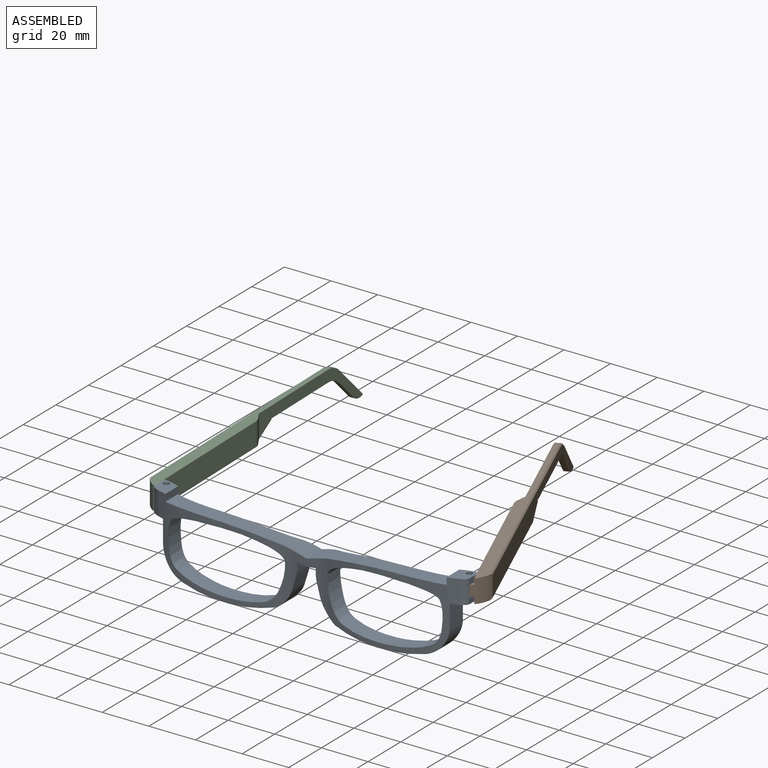
[diagram: assembled view]
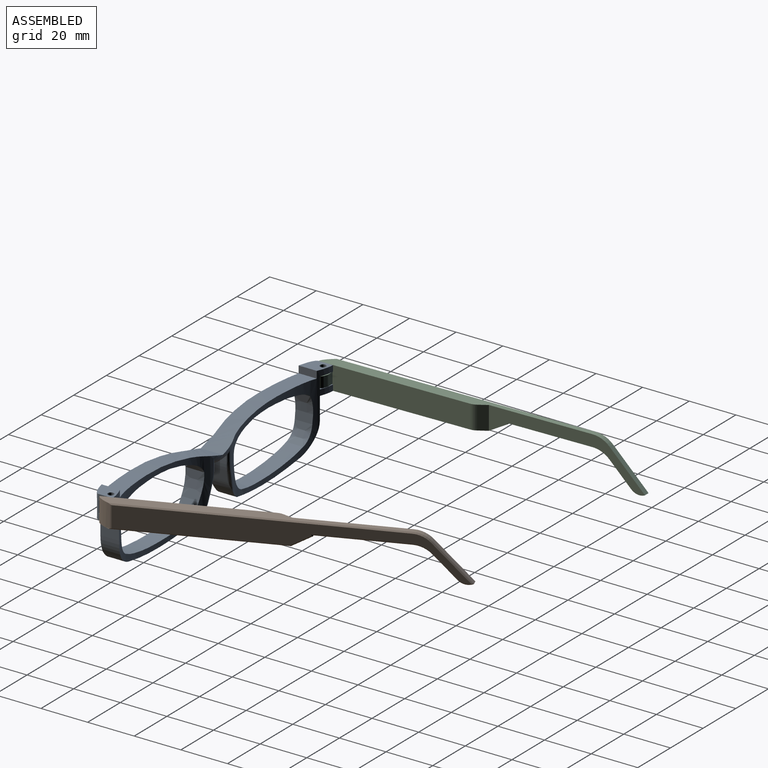
[diagram: assembled view, second angle]
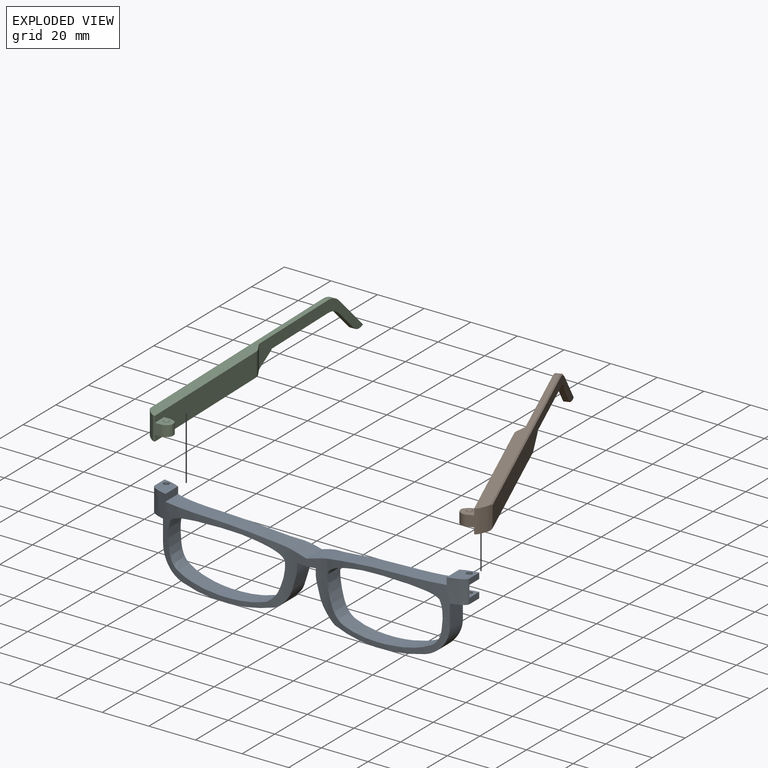
[diagram: exploded view]
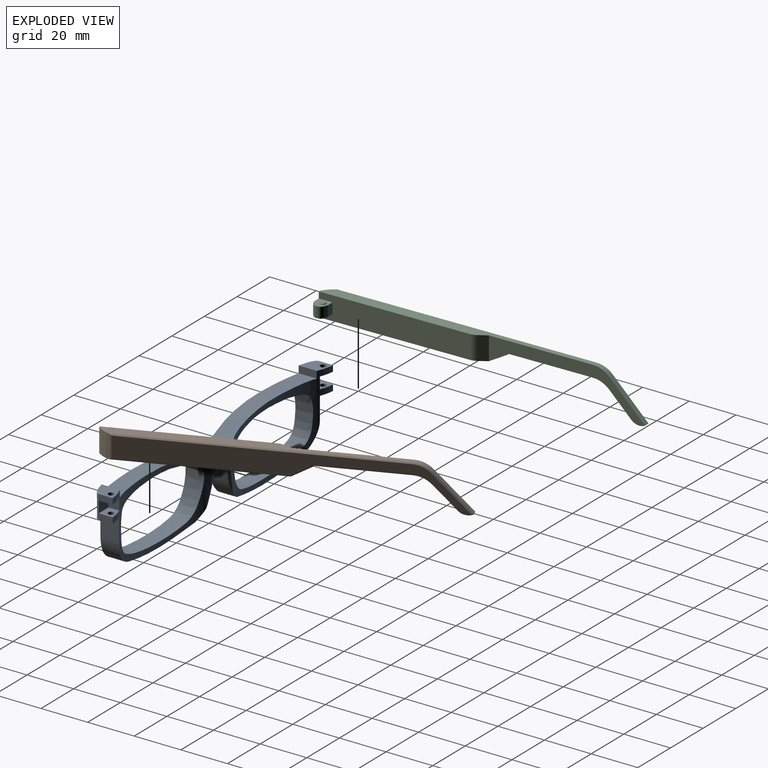
[diagram: exploded view, second angle]
ASSEMBLY  parts=3 mates=4
PART A: 91 faces, bbox 135.1x12.1x34.1 mm
  f0: extruded ~51.21x34.02mm, area 342.6mm2, adj f11,f13,f14,f30,f31,f32,f33,f34
  f1: extruded ~57.03x34.02mm, area 439mm2, adj f8,f13,f14,f15,f19,f20,f30,f31
  f2: extruded ~57.03x34.02mm, area 439mm2, adj f9,f12,f16,f17,f18,f21,f22,f23
  f3: extruded ~51.21x34.02mm, area 342.6mm2, adj f4,f10,f12,f17,f21,f22,f23,f24
  f4: cylinder r=20mm len=23.87mm, axis (0,0,1), area 51.6mm2, adj f3,f16,f17,f18,f42,f73,f74,f75
  f5: plane 1.05x0.32mm, normal (0,1,0), area 0.2mm2, adj f10,f67,f81
  f6: plane 1.05x0.32mm, normal (0,1,0), area 0.2mm2, adj f11,f67,f82
  f7: plane 16.35x12.63mm, normal (0,-1,0), area 83.6mm2, adj f8,f9,f39,f40,f41,f43,f44,f45
  f8: cylinder r=20mm len=23.15mm, axis (0,0,1), area 71.7mm2, adj f1,f7,f46,f56,f57,f82
  f9: cylinder r=20mm len=23.15mm, axis (0,0,1), area 71.7mm2, adj f2,f7,f47,f50,f51,f81
  f10: cylinder r=20mm len=21.92mm, axis (0,0,1), area 69.3mm2, adj f3,f5,f47,f50,f51,f63,f64,f65
  f11: cylinder r=20mm len=21.92mm, axis (0,0,1), area 69.3mm2, adj f0,f6,f46,f56,f57,f60,f61,f62
  f12: plane 20.33x9.98mm, normal (0,0,1), area 146.6mm2, adj f2,f3,f81,f89
  f13: plane 20.33x9.98mm, normal (0,0,1), area 146.6mm2, adj f0,f1,f82,f90
  f14: plane 9.76x7.17mm, normal (0,0,1), area 51.2mm2, adj f0,f1,f15,f59,f78,f90
  f15: plane 6x2.5mm, normal (1,0,0), area 15mm2, adj f1,f14,f59,f69
  f16: plane 6x2.5mm, normal (-1,0,0), area 15mm2, adj f2,f4,f18,f74
  f17: plane 9.76x7.17mm, normal (0,0,1), area 51.2mm2, adj f2,f3,f4,f42,f80,f89
  f18: plane 9.47x6mm, normal (0,0,-1), area 42mm2, adj f2,f4,f16,f79,f85
  f19: plane 9.47x6mm, normal (0,0,-1), area 42mm2, adj f1,f20,f59,f77,f88
  f20: plane 6x2.5mm, normal (1,0,0), area 15mm2, adj f1,f19,f59,f71
  f21: extruded ~11.69x8.27mm, area 87.6mm2, adj f2,f3,f22,f29
  f22: extruded ~7.23x7.2mm, area 51mm2, adj f2,f3,f21,f23
  f23: extruded ~18.57x8.25mm, area 133.5mm2, adj f2,f3,f22,f49
  f24: extruded ~8.61x7.01mm, area 60.4mm2, adj f2,f3,f25,f53
  f25: extruded ~7.19x4.22mm, area 29.6mm2, adj f2,f3,f24,f26
  f26: extruded ~7.56x6.16mm, area 43.9mm2, adj f2,f3,f25,f27
  f27: extruded ~8.5x7.9mm, area 61.7mm2, adj f2,f3,f26,f28
  f28: extruded ~11.18x7.72mm, area 85.4mm2, adj f2,f3,f27,f29
  f29: extruded ~8.24x7.35mm, area 65.6mm2, adj f2,f3,f21,f28
  f30: extruded ~7.23x7.2mm, area 51mm2, adj f0,f1,f31,f38
  f31: extruded ~11.69x8.27mm, area 87.6mm2, adj f0,f1,f30,f32
  f32: extruded ~8.24x7.35mm, area 65.6mm2, adj f0,f1,f31,f33
  f33: extruded ~11.18x7.72mm, area 85.4mm2, adj f0,f1,f32,f34
  f34: extruded ~8.5x7.9mm, area 61.7mm2, adj f0,f1,f33,f35
  f35: extruded ~7.56x6.16mm, area 43.9mm2, adj f0,f1,f34,f36
  f36: extruded ~7.19x4.22mm, area 29.6mm2, adj f0,f1,f35,f37
  f37: extruded ~8.61x7.01mm, area 60.4mm2, adj f0,f1,f36,f54
  f38: extruded ~18.57x8.25mm, area 133.5mm2, adj f0,f1,f30,f58
  f39: plane 8.18x2.36mm, normal (1,0,0), area 13.9mm2, adj f7,f41,f48,f65,f68
  f40: plane 8.17x2.35mm, normal (-1,0,0), area 13.9mm2, adj f7,f41,f45,f60,f66
  f41: extruded ~8x6.5mm, area 51.7mm2, adj f7,f39,f40,f66,f67,f68
  f42: plane 6x2.5mm, normal (-1,0,0), area 15mm2, adj f2,f4,f17,f73
  f43: plane 7.98x4.64mm, normal (0.97,0,-0.26), area 37.5mm2, adj f7,f47,f48,f63
  f44: plane 7.98x4.64mm, normal (-0.97,0,-0.26), area 37.5mm2, adj f7,f45,f46,f62
  f45: cylinder r=15mm len=8.09mm, axis (0,-1,0), area 31.5mm2, adj f7,f40,f44,f61
  f46: cylinder r=15mm len=9.21mm, axis (0,-1,0), area 93.9mm2, adj f0,f1,f7,f8,f11,f44,f62,f86
  f47: cylinder r=15mm len=9.21mm, axis (0,-1,0), area 93.9mm2, adj f2,f3,f7,f9,f10,f43,f63,f83
  f48: cylinder r=15mm len=8.09mm, axis (0,-1,0), area 31.5mm2, adj f7,f39,f43,f64
  f49: extruded ~8.5x6.37mm, area 65.5mm2, adj f2,f3,f23,f50
  f50: extruded ~10.63x8.39mm, area 86mm2, adj f2,f3,f9,f10,f49,f51
  f51: extruded ~8.93x5.06mm, area 53mm2, adj f2,f3,f9,f10,f50,f52
  f52: extruded ~11.67x8.5mm, area 86.2mm2, adj f2,f3,f51,f53
  f53: extruded ~7.24x4.92mm, area 34.7mm2, adj f2,f3,f24,f52
  f54: extruded ~7.24x4.92mm, area 34.7mm2, adj f0,f1,f37,f55
  f55: extruded ~11.67x8.5mm, area 86.2mm2, adj f0,f1,f54,f56
  f56: extruded ~8.93x5.06mm, area 53mm2, adj f0,f1,f8,f11,f55,f57
  f57: extruded ~10.63x8.39mm, area 86mm2, adj f0,f1,f8,f11,f56,f58
  f58: extruded ~8.5x6.37mm, area 65.5mm2, adj f0,f1,f38,f57
  f59: cylinder r=20mm len=23.87mm, axis (0,0,1), area 51.6mm2, adj f0,f14,f15,f19,f20,f69,f70,f71
  f60: cylinder r=1mm len=4.85mm, axis (0,0,1), area 6.3mm2, adj f11,f40,f61,f66
  f61: bspline ~7.14x2.18mm, area 6.9mm2, adj f11,f45,f60,f62
  f62: bspline ~24.24x7.77mm, area 14.7mm2, adj f11,f44,f46,f61
  f63: bspline ~24.24x7.77mm, area 14.7mm2, adj f10,f43,f47,f64
  f64: bspline ~7.14x2.18mm, area 6.9mm2, adj f10,f48,f63,f65
  f65: cylinder r=1mm len=4.85mm, axis (0,0,1), area 6.3mm2, adj f10,f39,f64,f68
  f66: bspline ~7.97x3.75mm, area 15.4mm2, adj f11,f40,f41,f60,f67
  f67: bspline ~7.26x3.22mm, area 10.7mm2, adj f5,f6,f41,f66,f68
  f68: bspline ~7.97x3.75mm, area 15.4mm2, adj f10,f39,f41,f65,f67
  f69: plane 6x6mm, normal (0,0,-1), area 27.8mm2, adj f15,f59,f70,f72,f78
  f70: plane 5x4.57mm, normal (1,0,0), area 22.8mm2, adj f59,f69,f71,f72
  f71: plane 6x6mm, normal (0,0,1), area 27.8mm2, adj f20,f59,f70,f72,f77
  f72: plane 6x5mm, normal (0,1,0), area 30mm2, adj f1,f69,f70,f71
  f73: plane 6x6mm, normal (0,0,-1), area 27.8mm2, adj f4,f42,f75,f76,f80
  f74: plane 6x6mm, normal (0,0,1), area 27.8mm2, adj f4,f16,f75,f76,f79
  f75: plane 5x4.57mm, normal (-1,0,0), area 22.8mm2, adj f4,f73,f74,f76
  f76: plane 6x5mm, normal (0,1,0), area 30mm2, adj f2,f73,f74,f75
  f77: cylinder r=1.25mm len=2.5mm, axis (0,0,1), area 19.6mm2, adj f19,f71
  f78: cylinder r=1.25mm len=2.5mm, axis (0,0,1), area 19.6mm2, adj f14,f69
  f79: cylinder r=1.25mm len=2.5mm, axis (0,0,1), area 19.6mm2, adj f18,f74
  f80: cylinder r=1.25mm len=2.5mm, axis (0,0,1), area 19.6mm2, adj f17,f73
  f81: cylinder r=136.33mm len=40mm, axis (0,-1,0), area 305.8mm2, adj f2,f3,f5,f7,f9,f10,f12,f82
  f82: cylinder r=136.33mm len=40mm, axis (0,-1,0), area 305.8mm2, adj f0,f1,f6,f7,f8,f11,f13,f81
  f83: cylinder r=72mm len=39.22mm, axis (0,-1,0), area 290.2mm2, adj f2,f3,f47,f84
  f84: cylinder r=12.7mm len=12.25mm, axis (0,-1,0), area 128.9mm2, adj f2,f3,f4,f83,f85
  f85: plane 9.24x8.04mm, normal (-1,0,0), area 74.3mm2, adj f2,f4,f18,f84
  f86: cylinder r=72mm len=39.22mm, axis (0,-1,0), area 290.2mm2, adj f0,f1,f46,f87
  f87: cylinder r=12.7mm len=12.25mm, axis (0,-1,0), area 128.9mm2, adj f0,f1,f59,f86,f88
  f88: plane 9.24x8.04mm, normal (1,0,0), area 74.3mm2, adj f1,f19,f59,f87
  f89: plane 7.81x3mm, normal (1,0,0), area 23.4mm2, adj f2,f3,f12,f17
  f90: plane 7.81x3mm, normal (-1,0,0), area 23.4mm2, adj f0,f1,f13,f14
PART B: 40 faces, bbox 11.3x136x18.6 mm
  f0: plane 113.86x5mm, normal (0,0,1), area 434.2mm2, adj f1,f6,f14,f16,f26,f27,f28,f29
  f1: plane 63.91x10mm, normal (-1,0,0), area 612.4mm2, adj f0,f3,f4,f5,f6,f17,f29
  f2: plane 4.6x0.97mm, normal (-1,0,0), area 4.5mm2, adj f3,f4,f23,f25
  f3: plane 5.8x5.8mm, normal (0,0,1), area 24.6mm2, adj f1,f2,f6,f17,f21,f22,f23,f24
  f4: plane 5.8x5.8mm, normal (0,0,-1), area 24.6mm2, adj f1,f2,f6,f17,f20,f22,f23,f24
  f5: plane 70x5mm, normal (0,0,-1), area 335.5mm2, adj f1,f6,f10,f16,f26,f28,f29,f30
  f6: plane 10x3.09mm, normal (0,-1,0), area 17.4mm2, adj f0,f1,f3,f4,f5,f16,f23
  f7: plane 129.47x17.54mm, normal (1,0,0), area 847.7mm2, adj f16,f30,f31,f32,f33,f34,f35,f36
  f8: plane 35.86x2.25mm, normal (0,0,-1), area 80.7mm2, adj f9,f13,f27,f33
  f9: plane 2.25x0.38mm, normal (0,1,0), area 0.9mm2, adj f8,f10,f27,f32
  f10: plane 8x4.62mm, normal (0,0.5,-0.87), area 20.8mm2, adj f5,f9,f27,f31
  f11: plane 15.03x15.03mm, normal (0,0.71,0.71), area 47.8mm2, adj f14,f15,f27,f39
  f12: plane 9.15x9.15mm, normal (0,-0.71,-0.71), area 29.1mm2, adj f13,f15,f27,f35
  f13: cylinder r=10mm len=7.07mm, axis (-1,0,0), area 17.7mm2, adj f8,f12,f27,f34
  f14: cylinder r=10mm len=7.07mm, axis (1,0,0), area 17.7mm2, adj f0,f11,f27,f38
  f15: cylinder r=5mm len=5.88mm, axis (1,0,0), area 14.3mm2, adj f11,f12,f27,f37
  f16: extruded ~10x5.62mm, area 75.7mm2, adj f0,f5,f6,f7,f30,f36
  f17: plane 4.6x2.45mm, normal (0,1,0), area 11.3mm2, adj f1,f3,f4,f24
  f18: plane 1.5x1.5mm, normal (0,0,-1), area 1.8mm2, adj f20
  f19: plane 1.5x1.5mm, normal (0,0,1), area 1.8mm2, adj f21
  f20: torus R=0.75mm, axis (0,0,1), area 5.3mm2, adj f4,f18
  f21: torus R=0.75mm, axis (0,0,1), area 5.3mm2, adj f3,f19
  f22: plane 4.6x1.35mm, normal (-0.34,0.94,0), area 6.6mm2, adj f3,f4,f24,f25
  f23: cylinder r=3.5mm len=4.6mm, axis (0,0,1), area 19.8mm2, adj f2,f3,f4,f6
  f24: cylinder r=2mm len=4.6mm, axis (0,0,-1), area 3.2mm2, adj f3,f4,f17,f22
  f25: cylinder r=2mm len=4.6mm, axis (0,0,-1), area 11.2mm2, adj f2,f3,f4,f22
  f26: plane 10x0.01mm, normal (0,1,0), area 0.1mm2, adj f0,f5,f27,f28
  f27: plane 65.96x18.54mm, normal (-1,0,0), area 340.6mm2, adj f0,f8,f9,f10,f11,f12,f13,f14
  f28: plane 10x3.59mm, normal (-0.87,0.5,0), area 41.5mm2, adj f0,f5,f26,f29
  f29: cylinder r=5mm len=10mm, axis (0,0,-1), area 26.2mm2, adj f0,f1,f5,f28
  f30: plane 65.67x0.5mm, normal (0.71,0,-0.71), area 46mm2, adj f5,f7,f16,f31
  f31: plane 8.13x4.91mm, normal (0.71,0.35,-0.61), area 6.4mm2, adj f7,f10,f30,f32
  f32: plane 0.88x0.5mm, normal (0.71,0.71,0), area 0.3mm2, adj f7,f9,f31,f33
  f33: plane 36.36x0.5mm, normal (0.71,0,-0.71), area 25.5mm2, adj f7,f8,f32,f34
  f34: cone r=10mm half-angle=45deg, axis (1,0,0), area 5.7mm2, adj f7,f13,f33,f35
  f35: plane 9.5x9.5mm, normal (0.71,-0.5,-0.5), area 9.2mm2, adj f7,f12,f34,f37
  f36: plane 109.53x0.5mm, normal (0.71,0,0.71), area 77.1mm2, adj f0,f7,f16,f38
  f37: cone r=5mm half-angle=45deg, axis (-1,0,0), area 4mm2, adj f7,f15,f35,f39
  f38: cone r=9.5mm half-angle=45deg, axis (-1,0,0), area 5.4mm2, adj f7,f14,f36,f39
  f39: plane 15.42x15.07mm, normal (0.71,0.5,0.5), area 14.8mm2, adj f7,f11,f37,f38
PART C: 40 faces, bbox 11.3x136x18.6 mm
  f0: plane 35.86x2.25mm, normal (0,0,-1), area 80.7mm2, adj f1,f5,f26,f33
  f1: plane 2.25x0.38mm, normal (0,1,0), area 0.9mm2, adj f0,f2,f26,f32
  f2: plane 8x4.62mm, normal (0,0.5,-0.87), area 20.8mm2, adj f1,f11,f26,f31
  f3: plane 15.03x15.03mm, normal (0,0.71,0.71), area 47.8mm2, adj f6,f7,f26,f39
  f4: plane 9.15x9.15mm, normal (0,-0.71,-0.71), area 29.1mm2, adj f5,f7,f26,f35
  f5: cylinder r=10mm len=7.07mm, axis (1,0,0), area 17.7mm2, adj f0,f4,f26,f34
  f6: cylinder r=10mm len=7.07mm, axis (-1,0,0), area 17.7mm2, adj f3,f13,f26,f38
  f7: cylinder r=5mm len=5.88mm, axis (-1,0,0), area 14.3mm2, adj f3,f4,f26,f37
  f8: plane 4.6x0.97mm, normal (1,0,0), area 4.5mm2, adj f9,f10,f23,f25
  f9: plane 5.8x5.8mm, normal (0,0,1), area 24.6mm2, adj f8,f12,f14,f17,f21,f22,f23,f24
  f10: plane 5.8x5.8mm, normal (0,0,-1), area 24.6mm2, adj f8,f12,f14,f17,f20,f22,f23,f24
  f11: plane 70x5mm, normal (0,0,-1), area 335.5mm2, adj f2,f12,f14,f16,f27,f28,f29,f30
  f12: plane 10x3.09mm, normal (0,-1,0), area 17.4mm2, adj f9,f10,f11,f13,f14,f16,f23
  f13: plane 113.86x5mm, normal (0,0,1), area 434.2mm2, adj f6,f12,f14,f16,f26,f27,f28,f29
  f14: plane 63.91x10mm, normal (1,0,0), area 612.4mm2, adj f9,f10,f11,f12,f13,f17,f29
  f15: plane 129.47x17.54mm, normal (-1,0,0), area 847.7mm2, adj f16,f30,f31,f32,f33,f34,f35,f36
  f16: extruded ~10x5.62mm, area 75.7mm2, adj f11,f12,f13,f15,f30,f36
  f17: plane 4.6x2.45mm, normal (0,1,0), area 11.3mm2, adj f9,f10,f14,f24
  f18: plane 1.5x1.5mm, normal (0,0,-1), area 1.8mm2, adj f20
  f19: plane 1.5x1.5mm, normal (0,0,1), area 1.8mm2, adj f21
  f20: torus R=0.75mm, axis (0,0,1), area 5.3mm2, adj f10,f18
  f21: torus R=0.75mm, axis (0,0,1), area 5.3mm2, adj f9,f19
  f22: plane 4.6x1.35mm, normal (0.34,0.94,0), area 6.6mm2, adj f9,f10,f24,f25
  f23: cylinder r=3.5mm len=4.6mm, axis (0,0,1), area 19.8mm2, adj f8,f9,f10,f12
  f24: cylinder r=2mm len=4.6mm, axis (0,0,-1), area 3.2mm2, adj f9,f10,f17,f22
  f25: cylinder r=2mm len=4.6mm, axis (0,0,-1), area 11.2mm2, adj f8,f9,f10,f22
  f26: plane 65.96x18.54mm, normal (1,0,0), area 340.6mm2, adj f0,f1,f2,f3,f4,f5,f6,f7
  f27: plane 10x0.01mm, normal (0,1,0), area 0.1mm2, adj f11,f13,f26,f28
  f28: plane 10x3.59mm, normal (0.87,0.5,0), area 41.5mm2, adj f11,f13,f27,f29
  f29: cylinder r=5mm len=10mm, axis (0,0,-1), area 26.2mm2, adj f11,f13,f14,f28
  f30: plane 65.67x0.5mm, normal (-0.71,0,-0.71), area 46mm2, adj f11,f15,f16,f31
  f31: plane 8.13x4.91mm, normal (-0.71,0.35,-0.61), area 6.4mm2, adj f2,f15,f30,f32
  f32: plane 0.88x0.5mm, normal (-0.71,0.71,0), area 0.3mm2, adj f1,f15,f31,f33
  f33: plane 36.36x0.5mm, normal (-0.71,0,-0.71), area 25.5mm2, adj f0,f15,f32,f34
  f34: cone r=10.5mm half-angle=45deg, axis (-1,0,0), area 5.7mm2, adj f5,f15,f33,f35
  f35: plane 9.5x9.5mm, normal (-0.71,-0.5,-0.5), area 9.2mm2, adj f4,f15,f34,f37
  f36: plane 109.53x0.5mm, normal (-0.71,0,0.71), area 77.1mm2, adj f13,f15,f16,f38
  f37: cone r=4.5mm half-angle=45deg, axis (1,0,0), area 4mm2, adj f7,f15,f35,f39
  f38: cone r=10mm half-angle=45deg, axis (1,0,0), area 5.4mm2, adj f6,f15,f36,f39
  f39: plane 15.42x15.07mm, normal (-0.71,0.5,0.5), area 14.8mm2, adj f3,f15,f37,f38
PLACE A at identity fixed
PLACE B rot(axis=(0,0,1),22.3deg) t=(6.2,-24.43,0)mm
PLACE C rot(axis=(0,0,1),1.3deg) t=(0.06,1.47,0)mm
MATE cylindrical B.f20 <-> A.f77  axis (0,0,1) through (65,3.5,16.3)mm
MATE cylindrical C.f20 <-> A.f79  axis (0,0,1) through (-65,3.5,16.3)mm
MATE planar C.f20 <-> A.f79  axis (0,0,1) through (-65,3.5,16.3)mm
MATE planar B.f20 <-> A.f77  axis (0,0,1) through (65,3.5,16.3)mm
